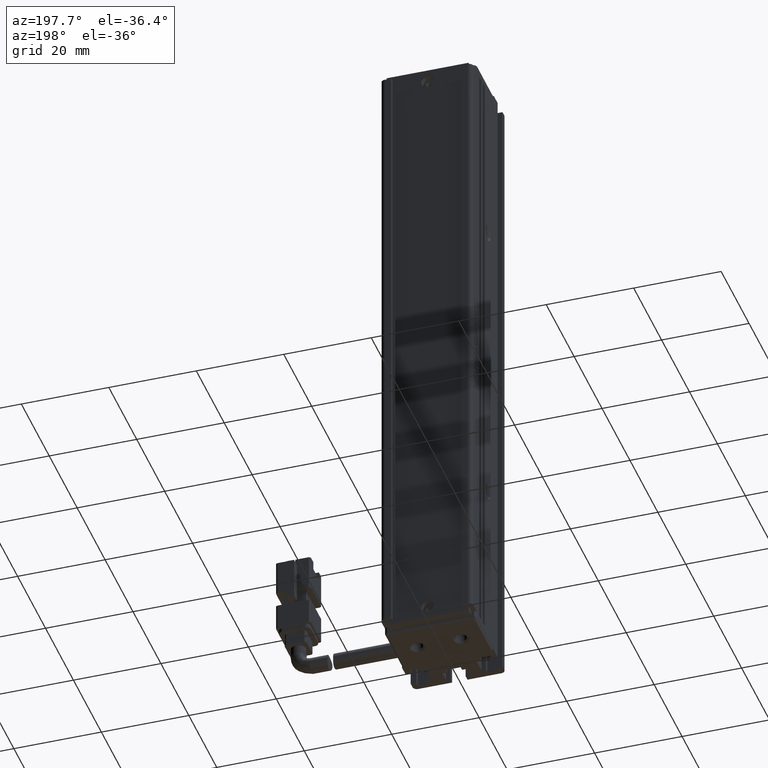
[diagram: clean part render]
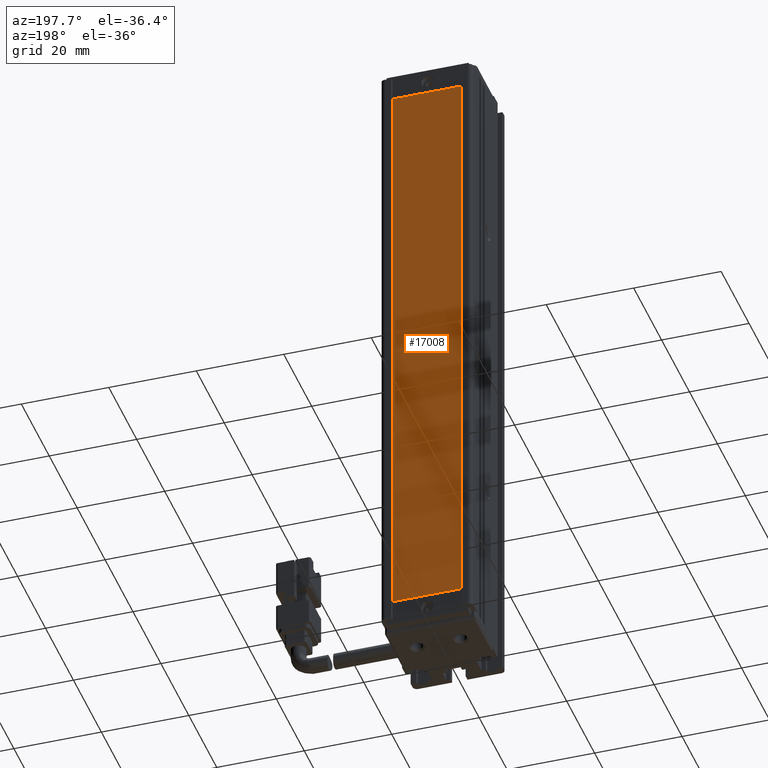
[diagram: same view with one face highlighted and labeled with its STEP entity id]
A machine part, auxiliary view. The second image highlights one B-rep face of the part: STEP entity #17008.
In plain terms, the highlighted planar face has unit normal (0, 1, 0).
Its self-contained STEP definition (entity closure, byte-faithful):
#2576 = AXIS2_PLACEMENT_3D ( 'NONE', #19851, #32349, #29061 ) ;
#2752 = LINE ( 'NONE', #7497, #36354 ) ;
#3477 = CARTESIAN_POINT ( 'NONE',  ( 48.92537974683541800, 34.19073232304837300, -183.0000000000000000 ) ) ;
#3883 = DIRECTION ( 'NONE',  ( 1.020425574104004100E-016, 0.0000000000000000000, 1.000000000000000000 ) ) ;
#4239 = ORIENTED_EDGE ( 'NONE', *, *, #31224, .T. ) ;
#7497 = CARTESIAN_POINT ( 'NONE',  ( 48.92537974683541800, 34.19073232304837300, -46.99999999999998600 ) ) ;
#7657 = FACE_OUTER_BOUND ( 'NONE', #36886, .T. ) ;
#8448 = LINE ( 'NONE', #34717, #12539 ) ;
#8767 = CARTESIAN_POINT ( 'NONE',  ( 48.92537974683541800, 34.19073232304837300, -46.99999999999998600 ) ) ;
#12539 = VECTOR ( 'NONE', #12669, 1000.000000000000000 ) ;
#12669 = DIRECTION ( 'NONE',  ( 1.000000000000000000, 0.0000000000000000000, 0.0000000000000000000 ) ) ;
#16377 = ORIENTED_EDGE ( 'NONE', *, *, #40778, .T. ) ;
#17008 = ADVANCED_FACE ( 'NONE', ( #7657 ), #32497, .T. ) ;
#17096 = CARTESIAN_POINT ( 'NONE',  ( 48.92537974683541800, 34.19073232304837300, -183.0000000000000000 ) ) ;
#17249 = DIRECTION ( 'NONE',  ( -1.000000000000000000, 0.0000000000000000000, 0.0000000000000000000 ) ) ;
#17971 = VERTEX_POINT ( 'NONE', #39746 ) ;
#18924 = VECTOR ( 'NONE', #3883, 1000.000000000000000 ) ;
#19851 = CARTESIAN_POINT ( 'NONE',  ( 0.0000000000000000000, 34.19073232304837300, 0.0000000000000000000 ) ) ;
#20422 = LINE ( 'NONE', #27037, #18924 ) ;
#20429 = DIRECTION ( 'NONE',  ( 0.0000000000000000000, 0.0000000000000000000, -1.000000000000000000 ) ) ;
#21334 = VECTOR ( 'NONE', #17249, 1000.000000000000000 ) ;
#26011 = CARTESIAN_POINT ( 'NONE',  ( 32.92537974683543900, 34.19073232304837300, -46.99999999999998600 ) ) ;
#27037 = CARTESIAN_POINT ( 'NONE',  ( 32.92537974683542500, 34.19073232304837300, -183.0000000000000000 ) ) ;
#29061 = DIRECTION ( 'NONE',  ( 0.0000000000000000000, -0.0000000000000000000, 1.000000000000000000 ) ) ;
#30538 = ORIENTED_EDGE ( 'NONE', *, *, #39464, .T. ) ;
#31224 = EDGE_CURVE ( 'NONE', #31870, #39567, #8448, .T. ) ;
#31870 = VERTEX_POINT ( 'NONE', #26011 ) ;
#32349 = DIRECTION ( 'NONE',  ( 0.0000000000000000000, 1.000000000000000000, 0.0000000000000000000 ) ) ;
#32497 = PLANE ( 'NONE',  #2576 ) ;
#33105 = VERTEX_POINT ( 'NONE', #3477 ) ;
#34717 = CARTESIAN_POINT ( 'NONE',  ( 32.92537974683543900, 34.19073232304837300, -46.99999999999998600 ) ) ;
#35796 = EDGE_CURVE ( 'NONE', #17971, #31870, #20422, .T. ) ;
#36354 = VECTOR ( 'NONE', #20429, 1000.000000000000000 ) ;
#36886 = EDGE_LOOP ( 'NONE', ( #30538, #16377, #37558, #4239 ) ) ;
#37558 = ORIENTED_EDGE ( 'NONE', *, *, #35796, .T. ) ;
#39464 = EDGE_CURVE ( 'NONE', #39567, #33105, #2752, .T. ) ;
#39567 = VERTEX_POINT ( 'NONE', #8767 ) ;
#39746 = CARTESIAN_POINT ( 'NONE',  ( 32.92537974683542500, 34.19073232304837300, -183.0000000000000000 ) ) ;
#40220 = LINE ( 'NONE', #17096, #21334 ) ;
#40778 = EDGE_CURVE ( 'NONE', #33105, #17971, #40220, .T. ) ;